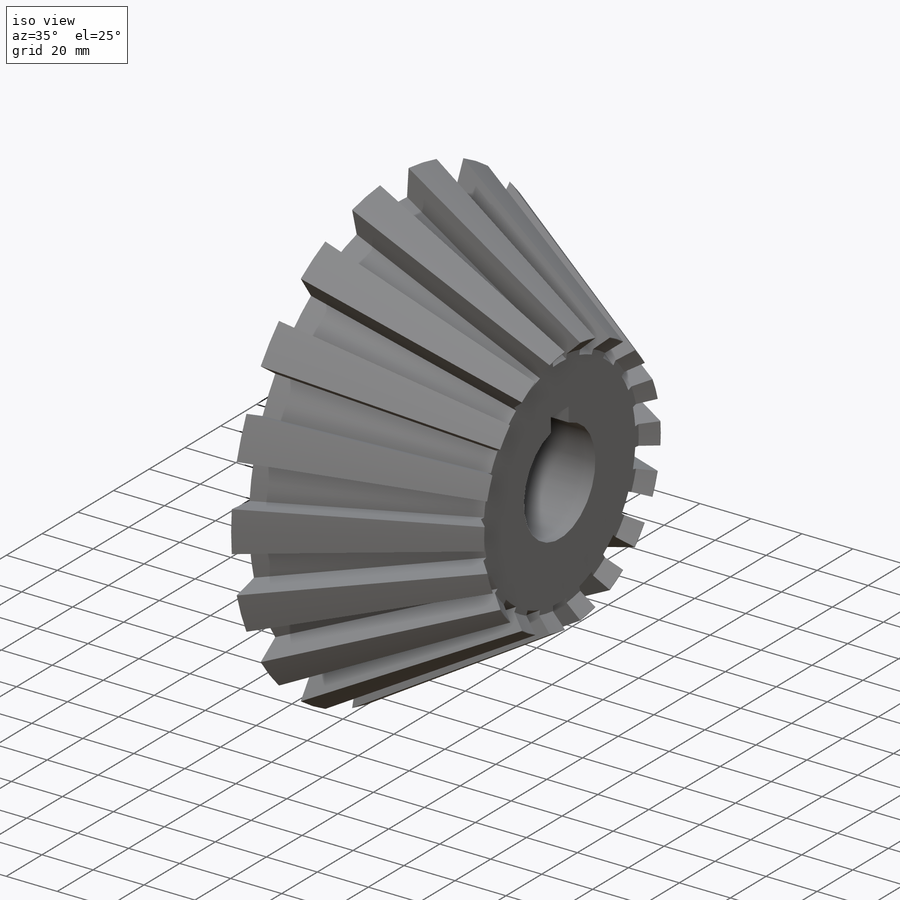
[diagram: iso view]
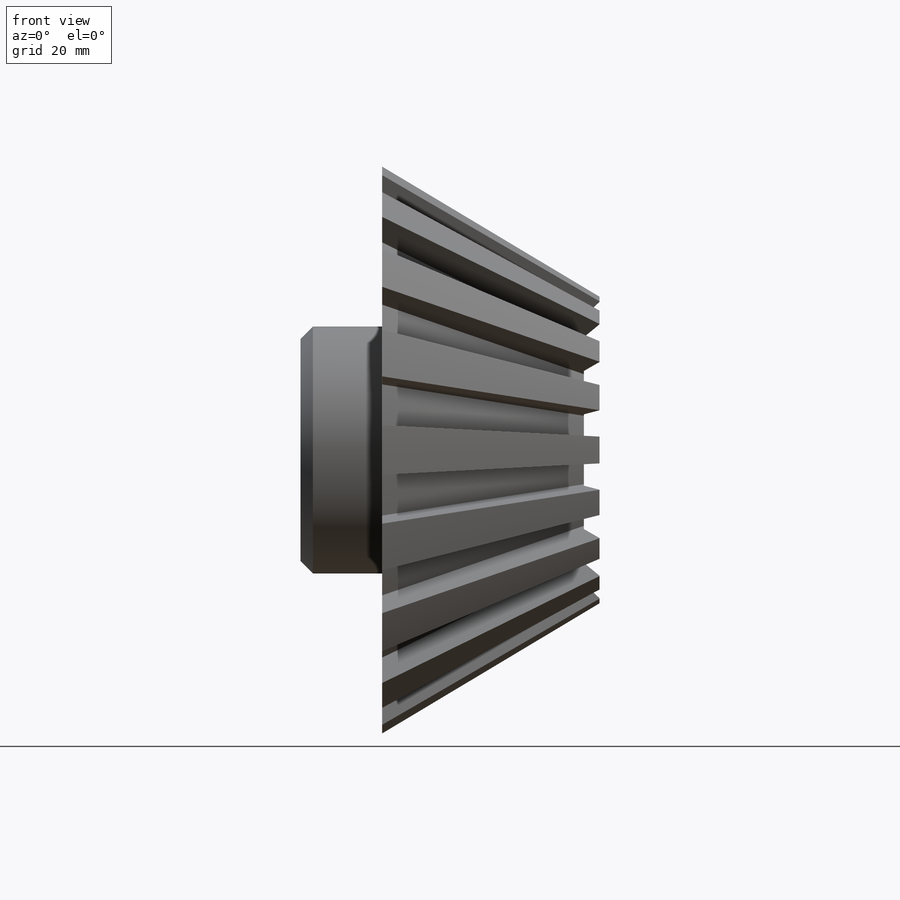
[diagram: front view]
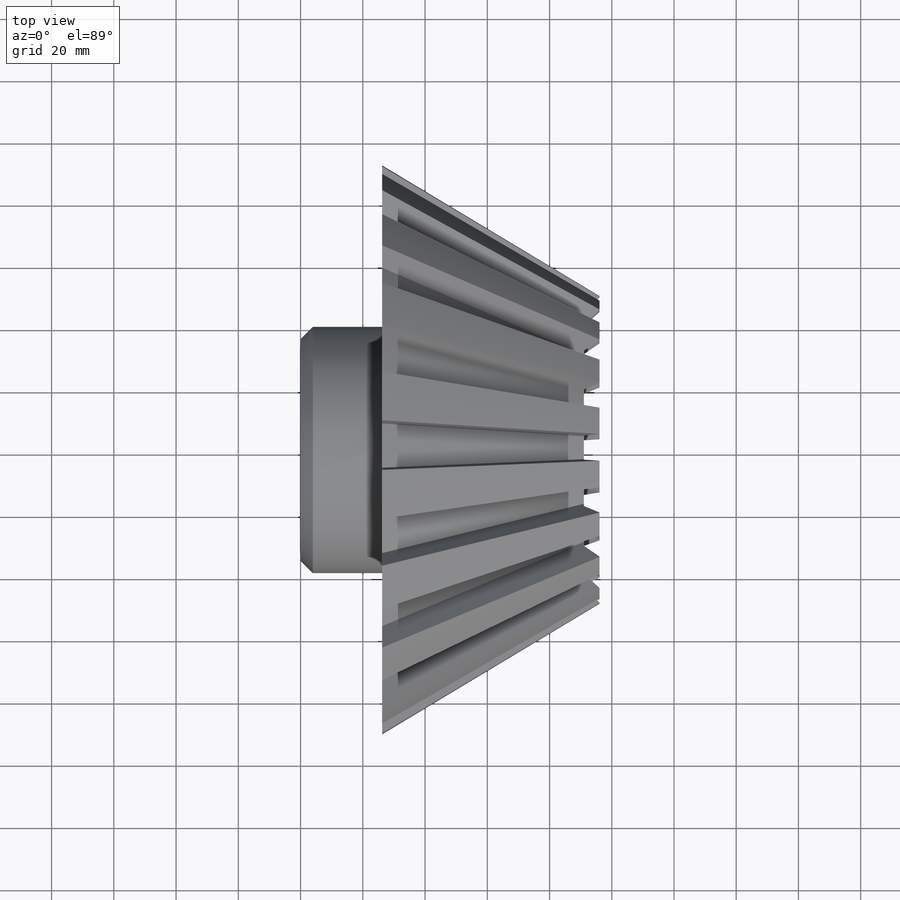
[diagram: top view]
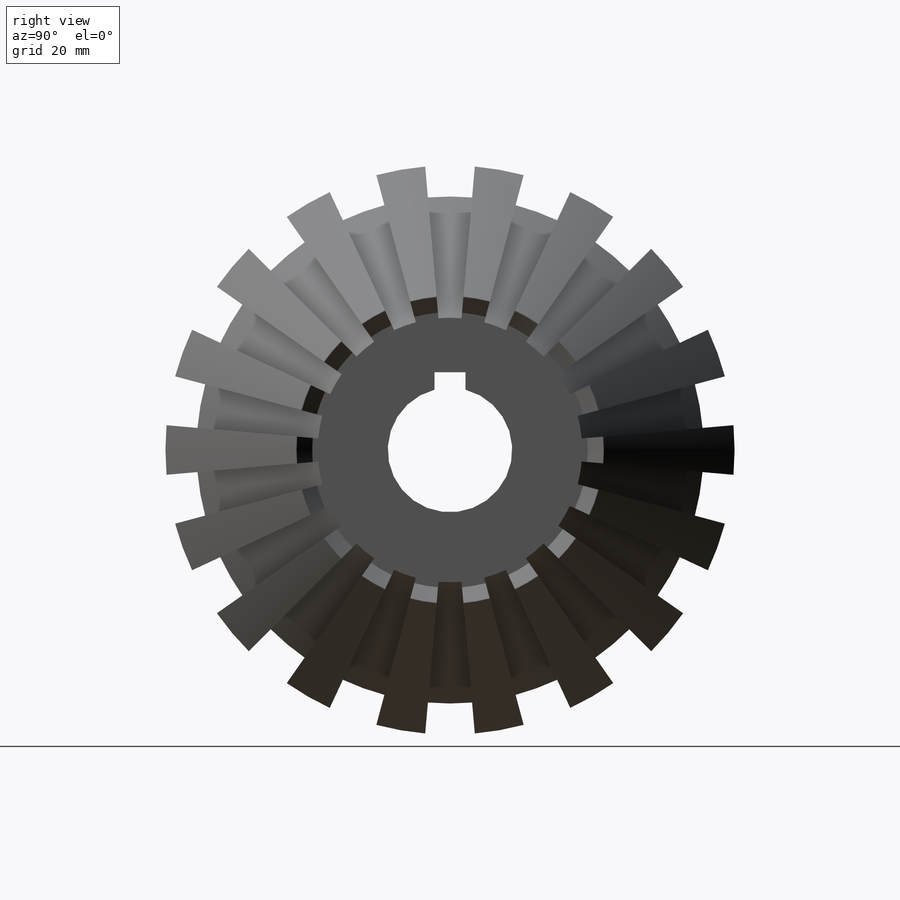
[diagram: right view]
SOLIDWORKS PART (.sldprt)
format: sldprt  version: not decoded by parser v0  size: 303,616 bytes
history: native  units: mm
features: sketch x4, plane x3, cut_revolve x2, material x1, revolve x1, chamfer x1, pattern_circular x1, cut_extrude x1 (+8 scaffold rows collapsed)
feature tree (22):
  scaffold x8  (default folders/planes/origin — collapsed)
  material  "Material <não especificado>"
  plane  "Plano frontal"
  plane  "Plano superior"
  plane  "Plano direito"
  sketch  "Esboço1"  dims[c1.D1=79.375mm c1.D2=40.0mm c1.D3=~26.19375mm c1.D4=182.88mm c1.D5=~78.036329mm c2.D5=31.0deg c2.D6=69.85mm c2.D7=~63.702081mm c3.D6=69.85mm c3.D7=63.5mm c3.D8=~52.643886mm c4.D8=34.0deg c5.D8=~48.530237mm c6.D8=38.0deg c6.D9=~37.324364mm]
  revolve  "Revolução1"  Angle=360deg
  chamfer  "Chanfro1"  Distance=3.96875mm Angle=45deg
  sketch  "Esboço3"  dims[c1.D1=~49.312259mm c2.D1=31.0deg]
  cut_revolve  "Corte-Revolução1"  Angle=10deg
  pattern_circular  "PadrãoCircular1"  Count=18 Angle=360deg
  sketch  "Esboço7"  dims[c1.D1=~2.239099mm c2.D1=~131.469396deg c3.D1=~2.239099mm c4.D1=45.0deg c4.D2=5.0mm]
  cut_revolve  "Corte-Revolução2"  Angle=360deg
  sketch  "Esboço8"  dims[c1.D1=35.0mm c1.D2=4.8375mm c2.D1=5.0mm c2.D2=10.0mm]
  cut_extrude  "Corte-extrusão1"  [1 undecoded]
decode coverage: 9 of 10 modeling features carry decoded parameters
note: ~ marks probable driven/reference dimensions
note: 1 parameter value undecoded
note: suppression state not decoded; provenance and decode notes live in map.json
